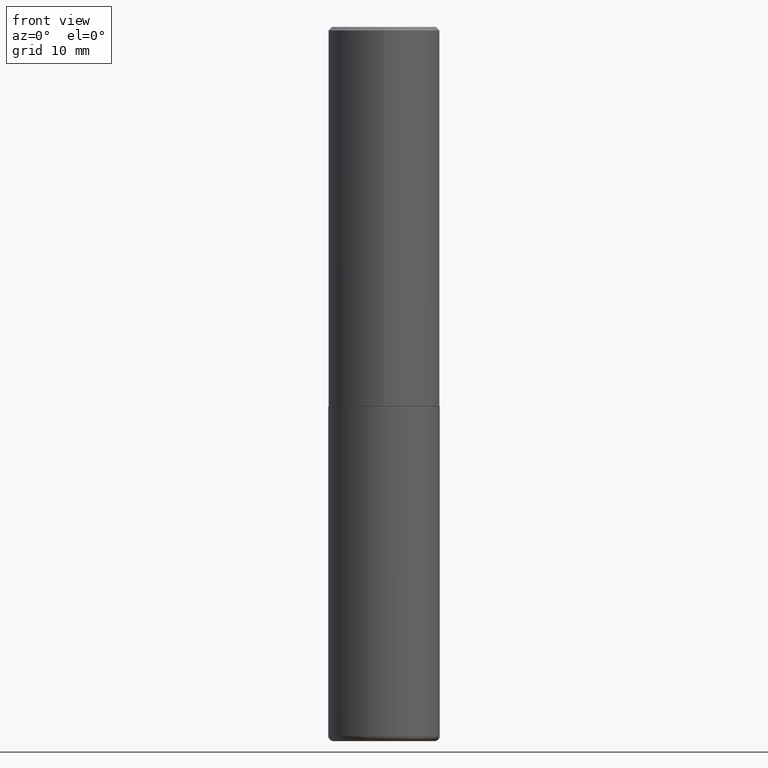
[diagram: clean part render]
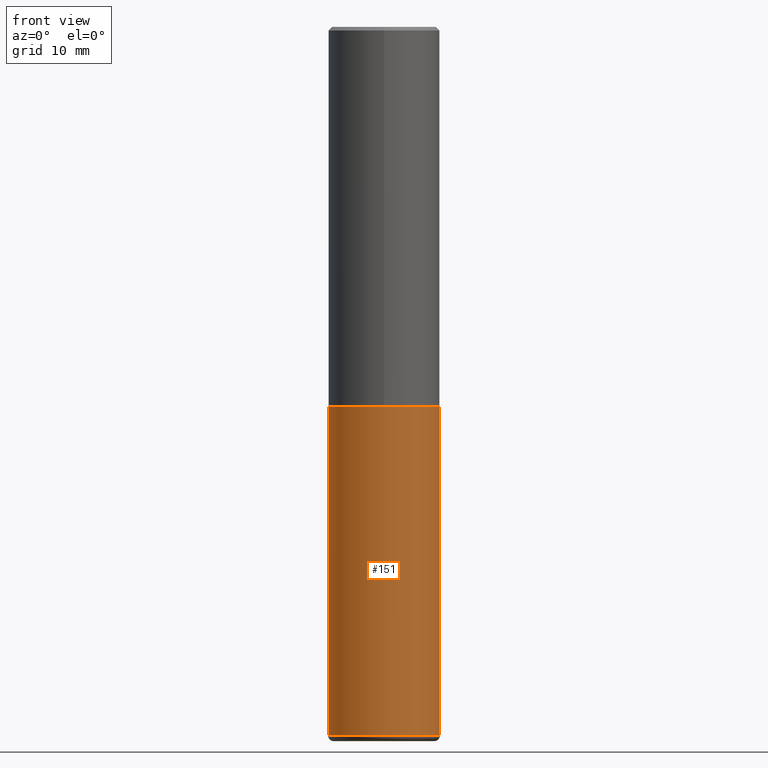
[diagram: same view with one face highlighted and labeled with its STEP entity id]
A machine part, front view. The second image highlights one B-rep face of the part: STEP entity #151.
In plain terms, the highlighted cylindrical surface (partial cylindrical patch) has radius 7.9375 mm, axis along (-0, 0, 1).
Its self-contained STEP definition (entity closure, byte-faithful):
#3 = VECTOR ( 'NONE', #255, 39.37007874015748143 ) ;
#39 = CARTESIAN_POINT ( 'NONE',  ( 5.196621213143414147E-29, -7.419397845041682046E-15, -2.124999999999999556 ) ) ;
#41 = DIRECTION ( 'NONE',  ( 1.000000000000000000, -6.982962677686269077E-15, 0.000000000000000000 ) ) ;
#54 = CARTESIAN_POINT ( 'NONE',  ( -0.3125000000000000000, -1.164073486595697430E-14, -3.970000000000000195 ) ) ;
#76 = CARTESIAN_POINT ( 'NONE',  ( 0.3125000000000000000, -1.604335675198424731E-14, -3.970000000000000195 ) ) ;
#80 = ORIENTED_EDGE ( 'NONE', *, *, #418, .T. ) ;
#97 = CARTESIAN_POINT ( 'NONE',  ( -0.3125000000000000000, -8.419843330874171634E-15, -2.124999999999999556 ) ) ;
#120 = DIRECTION ( 'NONE',  ( -2.445468806185136597E-29, 3.491481338843145583E-15, 1.000000000000000000 ) ) ;
#151 = ADVANCED_FACE ( 'NONE', ( #378 ), #315, .T. ) ;
#165 = VERTEX_POINT ( 'NONE', #219 ) ;
#166 = CARTESIAN_POINT ( 'NONE',  ( -0.3125000000000000000, 2.220446049250313081E-15, -1.537167215704658232E-29 ) ) ;
#169 = AXIS2_PLACEMENT_3D ( 'NONE', #180, #120, #405 ) ;
#180 = CARTESIAN_POINT ( 'NONE',  ( 0.000000000000000000, 0.000000000000000000, 0.000000000000000000 ) ) ;
#193 = AXIS2_PLACEMENT_3D ( 'NONE', #297, #329, #41 ) ;
#197 = DIRECTION ( 'NONE',  ( -2.445468806185136877E-29, 3.491481338843145188E-15, 1.000000000000000000 ) ) ;
#199 = DIRECTION ( 'NONE',  ( -2.445468806185136597E-29, 3.491481338843145583E-15, 1.000000000000000000 ) ) ;
#202 = DIRECTION ( 'NONE',  ( 1.000000000000000000, -6.982962677686265133E-15, 0.000000000000000000 ) ) ;
#218 = AXIS2_PLACEMENT_3D ( 'NONE', #39, #199, #202 ) ;
#219 = CARTESIAN_POINT ( 'NONE',  ( 0.3125000000000000000, -9.601573681818640393E-15, -2.124999999999999556 ) ) ;
#236 = CIRCLE ( 'NONE', #218, 0.3125000000000000000 ) ;
#247 = LINE ( 'NONE', #320, #3 ) ;
#254 = VERTEX_POINT ( 'NONE', #54 ) ;
#255 = DIRECTION ( 'NONE',  ( -2.445468806185136877E-29, 3.491481338843145188E-15, 1.000000000000000000 ) ) ;
#257 = CIRCLE ( 'NONE', #193, 0.3125000000000000000 ) ;
#258 = LINE ( 'NONE', #166, #381 ) ;
#266 = ORIENTED_EDGE ( 'NONE', *, *, #345, .F. ) ;
#280 = EDGE_CURVE ( 'NONE', #286, #165, #247, .T. ) ;
#281 = VERTEX_POINT ( 'NONE', #97 ) ;
#284 = ORIENTED_EDGE ( 'NONE', *, *, #404, .F. ) ;
#286 = VERTEX_POINT ( 'NONE', #76 ) ;
#297 = CARTESIAN_POINT ( 'NONE',  ( 9.708511160554992872E-29, -1.386118091520728738E-14, -3.970000000000000195 ) ) ;
#315 = CYLINDRICAL_SURFACE ( 'NONE', #169, 0.3125000000000000000 ) ;
#317 = ORIENTED_EDGE ( 'NONE', *, *, #280, .T. ) ;
#320 = CARTESIAN_POINT ( 'NONE',  ( 0.3125000000000000000, -2.182175836776958347E-15, 1.523805242436230075E-29 ) ) ;
#329 = DIRECTION ( 'NONE',  ( -2.445468806185136597E-29, 3.491481338843145583E-15, 1.000000000000000000 ) ) ;
#345 = EDGE_CURVE ( 'NONE', #281, #165, #236, .T. ) ;
#378 = FACE_OUTER_BOUND ( 'NONE', #383, .T. ) ;
#381 = VECTOR ( 'NONE', #197, 39.37007874015748143 ) ;
#383 = EDGE_LOOP ( 'NONE', ( #284, #80, #317, #266 ) ) ;
#404 = EDGE_CURVE ( 'NONE', #254, #281, #258, .T. ) ;
#405 = DIRECTION ( 'NONE',  ( 1.000000000000000000, -6.982962677686266711E-15, 4.876176775795936353E-29 ) ) ;
#418 = EDGE_CURVE ( 'NONE', #254, #286, #257, .T. ) ;